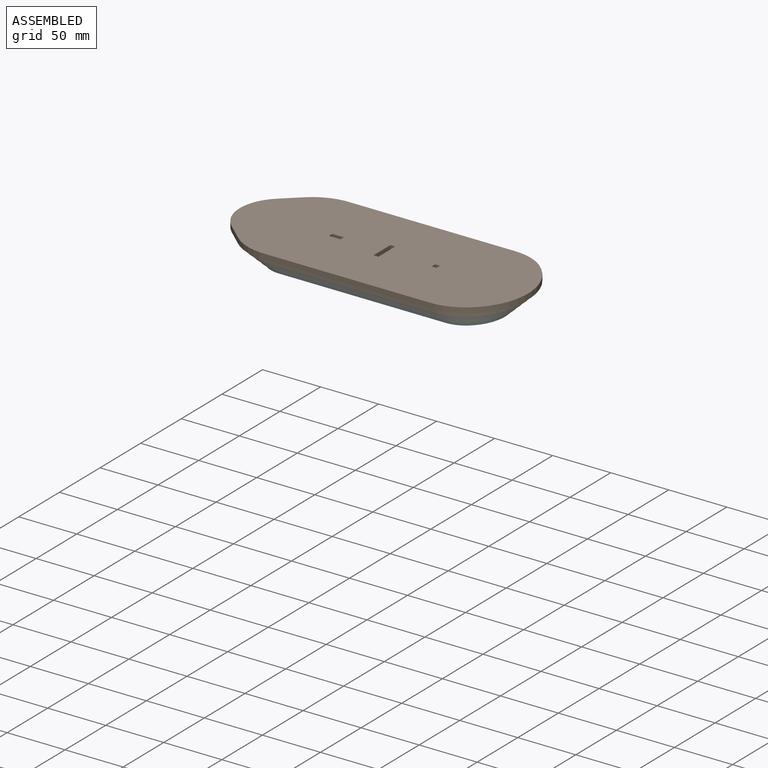
[diagram: assembled view]
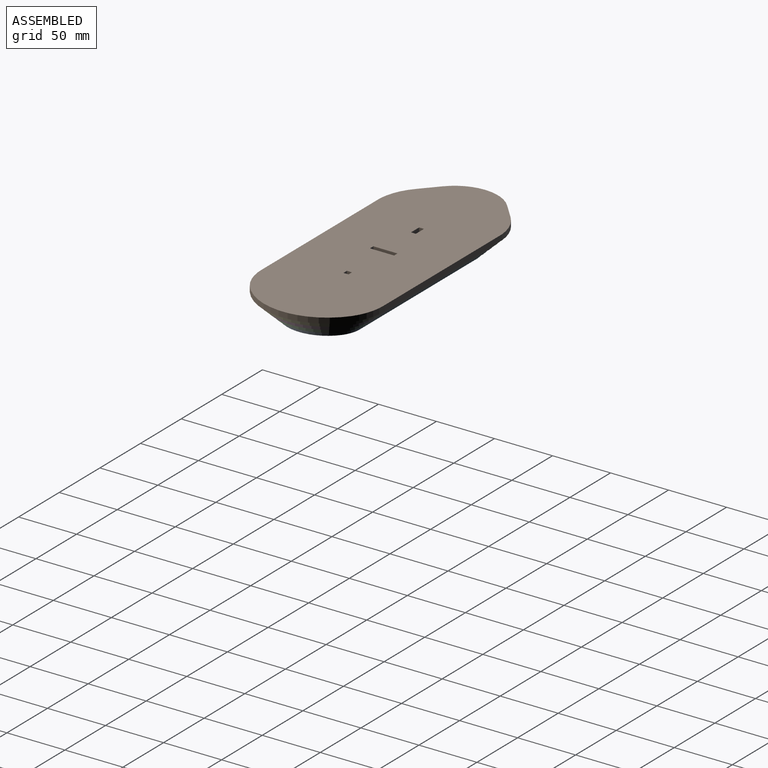
[diagram: assembled view, second angle]
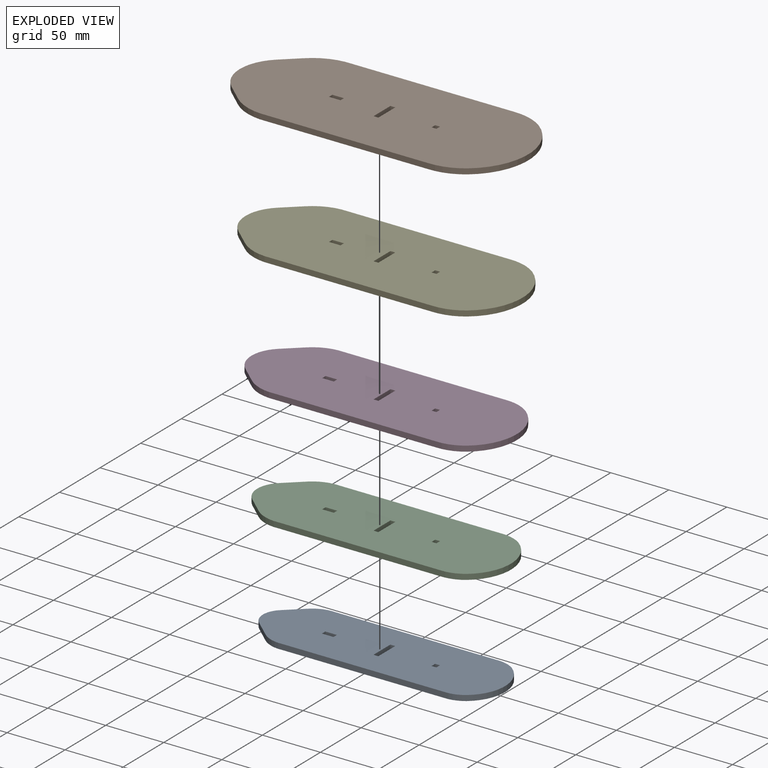
[diagram: exploded view]
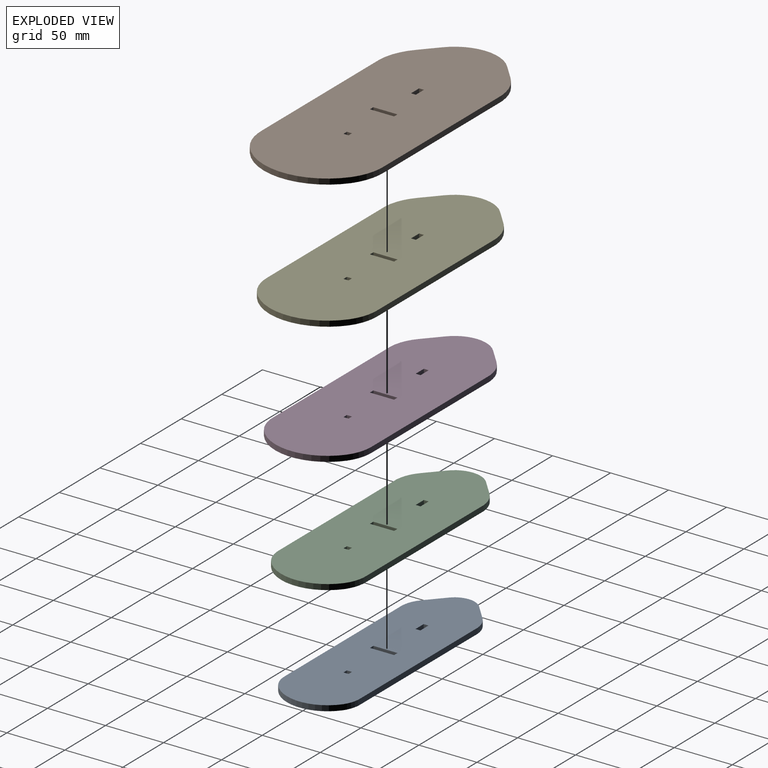
[diagram: exploded view, second angle]
ASSEMBLY  parts=5 mates=4
PART A: 24 faces, bbox 208.6x65.2x4.7 mm
  f0: plane 139.88x4.7mm, normal (0,1,0), area 657.5mm2, adj f1,f21,f22,f23
  f1: cylinder r=24.91mm len=18.48mm, axis (0,0,-1), area 93.9mm2, adj f0,f2,f22,f23
  f2: plane 15.09x13.59mm, normal (-0.67,0.74,0), area 95.4mm2, adj f1,f3,f22,f23
  f3: cylinder r=17.32mm len=25.73mm, axis (0,0,-1), area 136.3mm2, adj f2,f4,f22,f23
  f4: plane 15.09x13.59mm, normal (-0.67,-0.74,0), area 95.4mm2, adj f3,f5,f22,f23
  f5: cylinder r=24.91mm len=18.48mm, axis (0,0,-1), area 93.9mm2, adj f4,f6,f22,f23
  f6: plane 139.88x4.7mm, normal (0,-1,0), area 657.5mm2, adj f5,f7,f22,f23
  f7: cylinder r=25.06mm len=15.72mm, axis (0,0,-1), area 78.6mm2, adj f6,f8,f22,f23
  f8: cylinder r=35mm len=55.56mm, axis (0,0,-1), area 301.6mm2, adj f7,f21,f22,f23
  f9: plane 20.83x4.7mm, normal (1,0,0), area 97.9mm2, adj f10,f18,f22,f23
  f10: plane 4.7x4.2mm, normal (0,-1,0), area 19.7mm2, adj f9,f11,f22,f23
  f11: plane 20.83x4.7mm, normal (-1,0,0), area 97.9mm2, adj f10,f18,f22,f23
  f12: plane 4.7x4.41mm, normal (1,0,0), area 20.7mm2, adj f13,f19,f22,f23
  f13: plane 4.7x4.2mm, normal (0,-1,0), area 19.7mm2, adj f12,f14,f22,f23
  f14: plane 4.7x4.41mm, normal (-1,0,0), area 20.7mm2, adj f13,f19,f22,f23
  f15: plane 4.7x4.2mm, normal (1,0,0), area 19.7mm2, adj f16,f20,f22,f23
  f16: plane 10x4.7mm, normal (0,-1,0), area 47mm2, adj f15,f17,f22,f23
  f17: plane 4.7x4.2mm, normal (-1,0,0), area 19.7mm2, adj f16,f20,f22,f23
  f18: plane 4.7x4.2mm, normal (0,1,0), area 19.7mm2, adj f9,f11,f22,f23
  f19: plane 4.7x4.2mm, normal (0,1,0), area 19.7mm2, adj f12,f14,f22,f23
  f20: plane 10x4.7mm, normal (0,1,0), area 47mm2, adj f15,f17,f22,f23
  f21: cylinder r=25.06mm len=15.72mm, axis (0,0,-1), area 78.6mm2, adj f0,f8,f22,f23
  f22: plane 208.6x65.18mm, normal (0,0,1), area 12290mm2, adj f0,f1,f2,f3,f4,f5,f6,f7
  f23: plane 208.6x65.18mm, normal (0,0,-1), area 12290mm2, adj f0,f1,f2,f3,f4,f5,f6,f7
PART B: 24 faces, bbox 248.6x105.2x4.7 mm
  f0: plane 138.8x4.7mm, normal (0,1,0), area 652.4mm2, adj f1,f21,f22,f23
  f1: cylinder r=44.91mm len=33.3mm, axis (0,0,-1), area 170.7mm2, adj f0,f2,f22,f23
  f2: plane 14.37x12.95mm, normal (-0.67,0.74,0), area 90.9mm2, adj f1,f3,f22,f23
  f3: cylinder r=37.32mm len=55.45mm, axis (0,0,-1), area 293.8mm2, adj f2,f4,f22,f23
  f4: plane 14.37x12.95mm, normal (-0.67,-0.74,0), area 90.9mm2, adj f3,f5,f22,f23
  f5: cylinder r=44.91mm len=33.3mm, axis (0,0,-1), area 170.7mm2, adj f4,f6,f22,f23
  f6: plane 138.8x4.7mm, normal (0,-1,0), area 652.4mm2, adj f5,f7,f22,f23
  f7: cylinder r=45.06mm len=28.02mm, axis (0,0,-1), area 140.4mm2, adj f6,f8,f22,f23
  f8: cylinder r=55mm len=87.64mm, axis (0,0,-1), area 476.6mm2, adj f7,f21,f22,f23
  f9: plane 4.7x4.41mm, normal (1,0,0), area 20.7mm2, adj f10,f18,f22,f23
  f10: plane 4.7x4.2mm, normal (0,-1,0), area 19.7mm2, adj f9,f11,f22,f23
  f11: plane 4.7x4.41mm, normal (-1,0,0), area 20.7mm2, adj f10,f18,f22,f23
  f12: plane 20.83x4.7mm, normal (1,0,0), area 97.9mm2, adj f13,f19,f22,f23
  f13: plane 4.7x4.2mm, normal (0,-1,0), area 19.7mm2, adj f12,f14,f22,f23
  f14: plane 20.83x4.7mm, normal (-1,0,0), area 97.9mm2, adj f13,f19,f22,f23
  f15: plane 4.7x4.2mm, normal (1,0,0), area 19.7mm2, adj f16,f20,f22,f23
  f16: plane 10x4.7mm, normal (0,-1,0), area 47mm2, adj f15,f17,f22,f23
  f17: plane 4.7x4.2mm, normal (-1,0,0), area 19.7mm2, adj f16,f20,f22,f23
  f18: plane 4.7x4.2mm, normal (0,1,0), area 19.7mm2, adj f9,f11,f22,f23
  f19: plane 4.7x4.2mm, normal (0,1,0), area 19.7mm2, adj f12,f14,f22,f23
  f20: plane 10x4.7mm, normal (0,1,0), area 47mm2, adj f15,f17,f22,f23
  f21: cylinder r=45.06mm len=28.02mm, axis (0,0,-1), area 140.4mm2, adj f0,f8,f22,f23
  f22: plane 248.6x105.18mm, normal (0,0,1), area 23285.4mm2, adj f0,f1,f2,f3,f4,f5,f6,f7
  f23: plane 248.6x105.18mm, normal (0,0,-1), area 23285.4mm2, adj f0,f1,f2,f3,f4,f5,f6,f7
PART C: 24 faces, bbox 218.6x75.2x4.7 mm
  f0: plane 4.7x4.41mm, normal (-1,0,0), area 20.7mm2, adj f1,f21,f22,f23
  f1: plane 4.7x4.2mm, normal (0,1,0), area 19.7mm2, adj f0,f2,f22,f23
  f2: plane 4.7x4.41mm, normal (1,0,0), area 20.7mm2, adj f1,f21,f22,f23
  f3: plane 10x4.7mm, normal (0,1,0), area 47mm2, adj f4,f18,f22,f23
  f4: plane 4.7x4.2mm, normal (1,0,0), area 19.7mm2, adj f3,f5,f22,f23
  f5: plane 10x4.7mm, normal (0,-1,0), area 47mm2, adj f4,f18,f22,f23
  f6: plane 4.7x4.2mm, normal (0,1,0), area 19.7mm2, adj f7,f19,f22,f23
  f7: plane 20.83x4.7mm, normal (1,0,0), area 97.9mm2, adj f6,f8,f22,f23
  f8: plane 4.7x4.2mm, normal (0,-1,0), area 19.7mm2, adj f7,f19,f22,f23
  f9: cylinder r=29.91mm len=22.66mm, axis (0,0,-1), area 116.1mm2, adj f10,f20,f22,f23
  f10: plane 14.45x13.02mm, normal (-0.67,0.74,0), area 91.4mm2, adj f9,f11,f22,f23
  f11: cylinder r=22.32mm len=33.16mm, axis (0,0,-1), area 175.7mm2, adj f10,f12,f22,f23
  f12: plane 15.11x13.62mm, normal (-0.67,-0.74,0), area 95.6mm2, adj f11,f13,f22,f23
  f13: cylinder r=29.91mm len=22mm, axis (0,0,-1), area 111.9mm2, adj f12,f14,f22,f23
  f14: plane 139.58x4.7mm, normal (0,-1,0), area 656mm2, adj f13,f15,f22,f23
  f15: cylinder r=30.06mm len=18.8mm, axis (0,0,-1), area 94.1mm2, adj f14,f16,f22,f23
  f16: cylinder r=40mm len=63.58mm, axis (0,0,-1), area 345.4mm2, adj f15,f17,f22,f23
  f17: cylinder r=30.06mm len=18.8mm, axis (0,0,-1), area 94.1mm2, adj f16,f20,f22,f23
  f18: plane 4.7x4.2mm, normal (-1,0,0), area 19.7mm2, adj f3,f5,f22,f23
  f19: plane 20.83x4.7mm, normal (-1,0,0), area 97.9mm2, adj f6,f8,f22,f23
  f20: plane 139.58x4.7mm, normal (0,1,0), area 656mm2, adj f9,f17,f22,f23
  f21: plane 4.7x4.2mm, normal (0,-1,0), area 19.7mm2, adj f0,f2,f22,f23
  f22: plane 218.6x75.18mm, normal (0,0,1), area 14803.2mm2, adj f0,f1,f2,f3,f4,f5,f6,f7
  f23: plane 218.6x75.18mm, normal (0,0,-1), area 14803.2mm2, adj f0,f1,f2,f3,f4,f5,f6,f7
PART D: 24 faces, bbox 228.6x85.2x4.7 mm
  f0: plane 4.7x4.41mm, normal (-1,0,0), area 20.7mm2, adj f1,f21,f22,f23
  f1: plane 4.7x4.2mm, normal (0,1,0), area 19.7mm2, adj f0,f2,f22,f23
  f2: plane 4.7x4.41mm, normal (1,0,0), area 20.7mm2, adj f1,f21,f22,f23
  f3: plane 10x4.7mm, normal (0,1,0), area 47mm2, adj f4,f18,f22,f23
  f4: plane 4.7x4.2mm, normal (1,0,0), area 19.7mm2, adj f3,f5,f22,f23
  f5: plane 10x4.7mm, normal (0,-1,0), area 47mm2, adj f4,f18,f22,f23
  f6: plane 4.7x4.2mm, normal (0,1,0), area 19.7mm2, adj f7,f19,f22,f23
  f7: plane 20.83x4.7mm, normal (1,0,0), area 97.9mm2, adj f6,f8,f22,f23
  f8: plane 4.7x4.2mm, normal (0,-1,0), area 19.7mm2, adj f7,f19,f22,f23
  f9: cylinder r=35.06mm len=21.88mm, axis (0,0,-1), area 109.6mm2, adj f10,f20,f22,f23
  f10: cylinder r=45mm len=71.6mm, axis (0,0,-1), area 389.1mm2, adj f9,f11,f22,f23
  f11: cylinder r=35.06mm len=21.88mm, axis (0,0,-1), area 109.6mm2, adj f10,f12,f22,f23
  f12: plane 139.3x4.7mm, normal (0,1,0), area 654.7mm2, adj f11,f13,f22,f23
  f13: cylinder r=34.91mm len=26.22mm, axis (0,0,-1), area 134.4mm2, adj f12,f14,f22,f23
  f14: plane 14.42x12.99mm, normal (-0.67,0.74,0), area 91.2mm2, adj f13,f15,f22,f23
  f15: cylinder r=27.32mm len=40.59mm, axis (0,0,-1), area 215mm2, adj f14,f16,f22,f23
  f16: plane 14.42x12.99mm, normal (-0.67,-0.74,0), area 91.2mm2, adj f15,f17,f22,f23
  f17: cylinder r=34.91mm len=26.22mm, axis (0,0,-1), area 134.4mm2, adj f16,f20,f22,f23
  f18: plane 4.7x4.2mm, normal (-1,0,0), area 19.7mm2, adj f3,f5,f22,f23
  f19: plane 20.83x4.7mm, normal (-1,0,0), area 97.9mm2, adj f6,f8,f22,f23
  f20: plane 139.3x4.7mm, normal (0,-1,0), area 654.7mm2, adj f9,f17,f22,f23
  f21: plane 4.7x4.2mm, normal (0,-1,0), area 19.7mm2, adj f0,f2,f22,f23
  f22: plane 228.6x85.18mm, normal (0,0,1), area 17473.6mm2, adj f0,f1,f2,f3,f4,f5,f6,f7
  f23: plane 228.6x85.18mm, normal (0,0,-1), area 17473.6mm2, adj f0,f1,f2,f3,f4,f5,f6,f7
PART E: 24 faces, bbox 238.6x95.2x4.7 mm
  f0: plane 139.05x4.7mm, normal (0,1,0), area 653.5mm2, adj f1,f21,f22,f23
  f1: cylinder r=39.91mm len=29.77mm, axis (0,0,-1), area 152.6mm2, adj f0,f2,f22,f23
  f2: plane 14.4x12.97mm, normal (-0.67,0.74,0), area 91.1mm2, adj f1,f3,f22,f23
  f3: cylinder r=32.32mm len=48.02mm, axis (0,0,-1), area 254.4mm2, adj f2,f4,f22,f23
  f4: plane 14.4x12.97mm, normal (-0.67,-0.74,0), area 91.1mm2, adj f3,f5,f22,f23
  f5: cylinder r=39.91mm len=29.77mm, axis (0,0,-1), area 152.6mm2, adj f4,f6,f22,f23
  f6: plane 139.05x4.7mm, normal (0,-1,0), area 653.5mm2, adj f5,f7,f22,f23
  f7: cylinder r=40.06mm len=24.95mm, axis (0,0,-1), area 125mm2, adj f6,f8,f22,f23
  f8: cylinder r=50mm len=79.62mm, axis (0,0,-1), area 432.8mm2, adj f7,f21,f22,f23
  f9: plane 20.83x4.7mm, normal (1,0,0), area 97.9mm2, adj f10,f18,f22,f23
  f10: plane 4.7x4.2mm, normal (0,-1,0), area 19.7mm2, adj f9,f11,f22,f23
  f11: plane 20.83x4.7mm, normal (-1,0,0), area 97.9mm2, adj f10,f18,f22,f23
  f12: plane 4.7x4.41mm, normal (1,0,0), area 20.7mm2, adj f13,f19,f22,f23
  f13: plane 4.7x4.2mm, normal (0,-1,0), area 19.7mm2, adj f12,f14,f22,f23
  f14: plane 4.7x4.41mm, normal (-1,0,0), area 20.7mm2, adj f13,f19,f22,f23
  f15: plane 4.7x4.2mm, normal (1,0,0), area 19.7mm2, adj f16,f20,f22,f23
  f16: plane 10x4.7mm, normal (0,-1,0), area 47mm2, adj f15,f17,f22,f23
  f17: plane 4.7x4.2mm, normal (-1,0,0), area 19.7mm2, adj f16,f20,f22,f23
  f18: plane 4.7x4.2mm, normal (0,1,0), area 19.7mm2, adj f9,f11,f22,f23
  f19: plane 4.7x4.2mm, normal (0,1,0), area 19.7mm2, adj f12,f14,f22,f23
  f20: plane 10x4.7mm, normal (0,1,0), area 47mm2, adj f15,f17,f22,f23
  f21: cylinder r=40.06mm len=24.95mm, axis (0,0,-1), area 125mm2, adj f0,f8,f22,f23
  f22: plane 238.6x95.18mm, normal (0,0,1), area 20301mm2, adj f0,f1,f2,f3,f4,f5,f6,f7
  f23: plane 238.6x95.18mm, normal (0,0,-1), area 20301mm2, adj f0,f1,f2,f3,f4,f5,f6,f7
PLACE A t=(9.96,-79.87,-2.49)mm
PLACE B rot(axis=(1,0,0),180deg) t=(9.81,-300.63,21.01)mm
PLACE C rot(axis=(1,0,0),180deg) t=(-3.28,0.02,6.91)mm
PLACE D rot(axis=(1,0,0),180deg) t=(4.76,-91.28,11.61)mm
PLACE E rot(axis=(1,0,0),180deg) t=(-3.59,-191.89,16.31)mm
MATE fastened D.f22 <-> C.f23  axis (0,0,-1) through (2.32,-0.17,6.91)mm
MATE fastened B.f22 <-> E.f23  axis (0,0,-1) through (2.32,-0.17,16.31)mm
MATE fastened E.f22 <-> D.f23  axis (0,0,-1) through (2.32,-0.17,11.61)mm
MATE fastened C.f22 <-> A.f22  axis (0,0,-1) through (2.25,-0.17,2.21)mm
